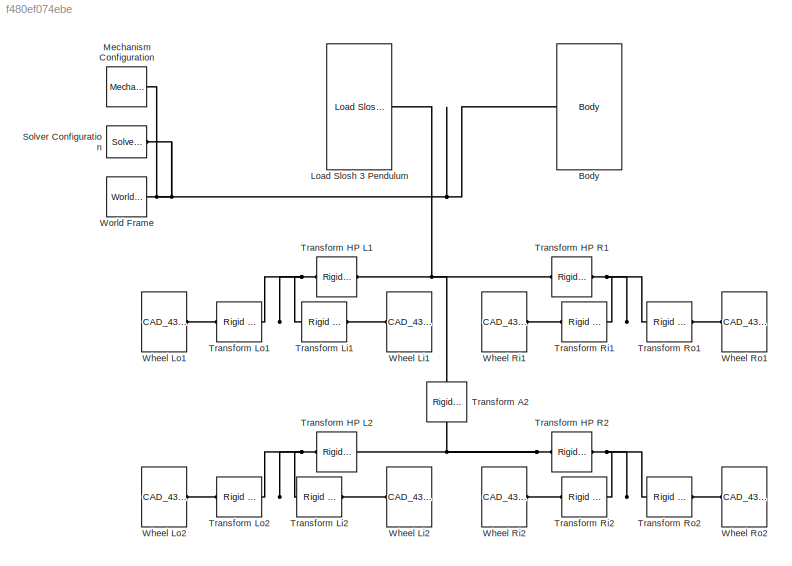
MODEL slx_f480ef074ebe
KIND model
CONFIG AbsTol = auto
CONFIG EnableMultiTasking = on
CONFIG FixedStep = auto
CONFIG MaxStep = auto
CONFIG MinStep = auto
CONFIG RelTol = 1e-3
CONFIG SampleTimeConstraint = Unconstrained
CONFIG SolverName = VariableStepAuto
CONFIG StartTime = 0.0
CONFIG StopTime = 10.0
BLOCK [Reference] Body  REF=Trailer_Kumanzi_Parts/Body
  Ports = [0, 0, 0, 0, 0, 1]
  SourceBlock = Trailer_Kumanzi_Parts/Body
BLOCK [Reference] Load Slosh 3 Pendulum  REF=BodyLoad_Slosh_Pend3/Load Slosh 3 Pendulum
  Ports = [0, 0, 0, 0, 0, 1]
  SourceBlock = BodyLoad_Slosh_Pend3/Load Slosh 3 Pendulum
  SourceType = Three Pendulum Inertial Load
BLOCK [Reference] Mechanism Configuration  REF=sm_lib/Utilities/Mechanism
Configuration
  Ports = [0, 0, 0, 0, 0, 0, 1]
  SourceBlock = sm_lib/Utilities/Mechanism\nConfiguration
  SourceProductBaseCode = MS
  SourceType = Mechanism\nConfiguration
BLOCK [Reference] Solver Configuration  REF=nesl_utility/Solver
Configuration
  Ports = [0, 0, 0, 0, 0, 0, 1]
  SourceBlock = nesl_utility/Solver\nConfiguration
  SourceProductBaseCode = SS,PW,VE
  SourceType = Solver\nConfiguration
BLOCK [Reference] Transform A2  REF=sm_lib/Frames and
Transforms/Rigid
Transform
  NameLocation = right
  Ports = [0, 0, 0, 0, 0, 1, 1]
  SourceBlock = sm_lib/Frames and\nTransforms/Rigid\nTransform
  SourceProductBaseCode = MS
  SourceType = Rigid\nTransform
BLOCK [Reference] Transform HP L1  REF=sm_lib/Frames and
Transforms/Rigid
Transform
  NameLocation = top
  Ports = [0, 0, 0, 0, 0, 1, 1]
  SourceBlock = sm_lib/Frames and\nTransforms/Rigid\nTransform
  SourceProductBaseCode = MS
  SourceType = Rigid\nTransform
BLOCK [Reference] Transform HP L2  REF=sm_lib/Frames and
Transforms/Rigid
Transform
  NameLocation = top
  Ports = [0, 0, 0, 0, 0, 1, 1]
  SourceBlock = sm_lib/Frames and\nTransforms/Rigid\nTransform
  SourceProductBaseCode = MS
  SourceType = Rigid\nTransform
BLOCK [Reference] Transform HP R1  REF=sm_lib/Frames and
Transforms/Rigid
Transform
  NameLocation = top
  Ports = [0, 0, 0, 0, 0, 1, 1]
  SourceBlock = sm_lib/Frames and\nTransforms/Rigid\nTransform
  SourceProductBaseCode = MS
  SourceType = Rigid\nTransform
BLOCK [Reference] Transform HP R2  REF=sm_lib/Frames and
Transforms/Rigid
Transform
  NameLocation = top
  Ports = [0, 0, 0, 0, 0, 1, 1]
  SourceBlock = sm_lib/Frames and\nTransforms/Rigid\nTransform
  SourceProductBaseCode = MS
  SourceType = Rigid\nTransform
BLOCK [Reference] Transform Li1  REF=sm_lib/Frames and
Transforms/Rigid
Transform
  Ports = [0, 0, 0, 0, 0, 1, 1]
  SourceBlock = sm_lib/Frames and\nTransforms/Rigid\nTransform
  SourceProductBaseCode = MS
  SourceType = Rigid\nTransform
BLOCK [Reference] Transform Li2  REF=sm_lib/Frames and
Transforms/Rigid
Transform
  Ports = [0, 0, 0, 0, 0, 1, 1]
  SourceBlock = sm_lib/Frames and\nTransforms/Rigid\nTransform
  SourceProductBaseCode = MS
  SourceType = Rigid\nTransform
BLOCK [Reference] Transform Lo1  REF=sm_lib/Frames and
Transforms/Rigid
Transform
  Ports = [0, 0, 0, 0, 0, 1, 1]
  SourceBlock = sm_lib/Frames and\nTransforms/Rigid\nTransform
  SourceProductBaseCode = MS
  SourceType = Rigid\nTransform
BLOCK [Reference] Transform Lo2  REF=sm_lib/Frames and
Transforms/Rigid
Transform
  Ports = [0, 0, 0, 0, 0, 1, 1]
  SourceBlock = sm_lib/Frames and\nTransforms/Rigid\nTransform
  SourceProductBaseCode = MS
  SourceType = Rigid\nTransform
BLOCK [Reference] Transform Ri1  REF=sm_lib/Frames and
Transforms/Rigid
Transform
  Ports = [0, 0, 0, 0, 0, 1, 1]
  SourceBlock = sm_lib/Frames and\nTransforms/Rigid\nTransform
  SourceProductBaseCode = MS
  SourceType = Rigid\nTransform
BLOCK [Reference] Transform Ri2  REF=sm_lib/Frames and
Transforms/Rigid
Transform
  Ports = [0, 0, 0, 0, 0, 1, 1]
  SourceBlock = sm_lib/Frames and\nTransforms/Rigid\nTransform
  SourceProductBaseCode = MS
  SourceType = Rigid\nTransform
BLOCK [Reference] Transform Ro1  REF=sm_lib/Frames and
Transforms/Rigid
Transform
  Ports = [0, 0, 0, 0, 0, 1, 1]
  SourceBlock = sm_lib/Frames and\nTransforms/Rigid\nTransform
  SourceProductBaseCode = MS
  SourceType = Rigid\nTransform
BLOCK [Reference] Transform Ro2  REF=sm_lib/Frames and
Transforms/Rigid
Transform
  Ports = [0, 0, 0, 0, 0, 1, 1]
  SourceBlock = sm_lib/Frames and\nTransforms/Rigid\nTransform
  SourceProductBaseCode = MS
  SourceType = Rigid\nTransform
BLOCK [Reference] Wheel Li1  REF=Truck_Amandla_Parts/CAD_430_50R38
  AttributesFormatString = %<LabelModeActiveChoice>
  Ports = [0, 0, 0, 0, 0, 1]
  SourceBlock = Truck_Amandla_Parts/CAD_430_50R38
BLOCK [Reference] Wheel Li2  REF=Truck_Amandla_Parts/CAD_430_50R38
  AttributesFormatString = %<LabelModeActiveChoice>
  Ports = [0, 0, 0, 0, 0, 1]
  SourceBlock = Truck_Amandla_Parts/CAD_430_50R38
BLOCK [Reference] Wheel Lo1  REF=Truck_Amandla_Parts/CAD_430_50R38
  AttributesFormatString = %<LabelModeActiveChoice>
  Ports = [0, 0, 0, 0, 0, 1]
  SourceBlock = Truck_Amandla_Parts/CAD_430_50R38
BLOCK [Reference] Wheel Lo2  REF=Truck_Amandla_Parts/CAD_430_50R38
  AttributesFormatString = %<LabelModeActiveChoice>
  Ports = [0, 0, 0, 0, 0, 1]
  SourceBlock = Truck_Amandla_Parts/CAD_430_50R38
BLOCK [Reference] Wheel Ri1  REF=Truck_Amandla_Parts/CAD_430_50R38
  AttributesFormatString = %<LabelModeActiveChoice>
  Ports = [0, 0, 0, 0, 0, 1]
  SourceBlock = Truck_Amandla_Parts/CAD_430_50R38
BLOCK [Reference] Wheel Ri2  REF=Truck_Amandla_Parts/CAD_430_50R38
  AttributesFormatString = %<LabelModeActiveChoice>
  Ports = [0, 0, 0, 0, 0, 1]
  SourceBlock = Truck_Amandla_Parts/CAD_430_50R38
BLOCK [Reference] Wheel Ro1  REF=Truck_Amandla_Parts/CAD_430_50R38
  AttributesFormatString = %<LabelModeActiveChoice>
  Ports = [0, 0, 0, 0, 0, 1]
  SourceBlock = Truck_Amandla_Parts/CAD_430_50R38
BLOCK [Reference] Wheel Ro2  REF=Truck_Amandla_Parts/CAD_430_50R38
  AttributesFormatString = %<LabelModeActiveChoice>
  Ports = [0, 0, 0, 0, 0, 1]
  SourceBlock = Truck_Amandla_Parts/CAD_430_50R38
BLOCK [Reference] World Frame  REF=sm_lib/Frames and
Transforms/World Frame
  Ports = [0, 0, 0, 0, 0, 0, 1]
  SourceBlock = sm_lib/Frames and\nTransforms/World Frame
  SourceProductBaseCode = MS
  SourceType = World Frame
PNET net1: Body:LConn1 -- Load Slosh 3 Pendulum:LConn1 -- Mechanism Configuration:RConn1 -- Solver Configuration:RConn1 -- Transform A2:LConn1 -- Transform HP L1:LConn1 -- Transform HP R1:LConn1 -- World Frame:RConn1
PNET net2: Transform A2:RConn1 -- Transform HP L2:LConn1 -- Transform HP R2:LConn1
PNET net3: Transform HP L1:RConn1 -- Transform Li1:LConn1 -- Transform Lo1:RConn1
PNET net4: Transform HP L2:RConn1 -- Transform Li2:LConn1 -- Transform Lo2:RConn1
PNET net5: Transform HP R1:RConn1 -- Transform Ri1:RConn1 -- Transform Ro1:LConn1
PNET net6: Transform HP R2:RConn1 -- Transform Ri2:RConn1 -- Transform Ro2:LConn1
PLINE Transform Li1:RConn1 -- Wheel Li1:LConn1
PLINE Transform Li2:RConn1 -- Wheel Li2:LConn1
PLINE Transform Lo1:LConn1 -- Wheel Lo1:LConn1
PLINE Transform Lo2:LConn1 -- Wheel Lo2:LConn1
PLINE Transform Ri1:LConn1 -- Wheel Ri1:LConn1
PLINE Transform Ri2:LConn1 -- Wheel Ri2:LConn1
PLINE Transform Ro1:RConn1 -- Wheel Ro1:LConn1
PLINE Transform Ro2:RConn1 -- Wheel Ro2:LConn1
note: PNET lines group multi-terminal physical nets as a canonical sorted terminal list (undirected conserving connections); 2-terminal nets keep the pairwise PLINE form
